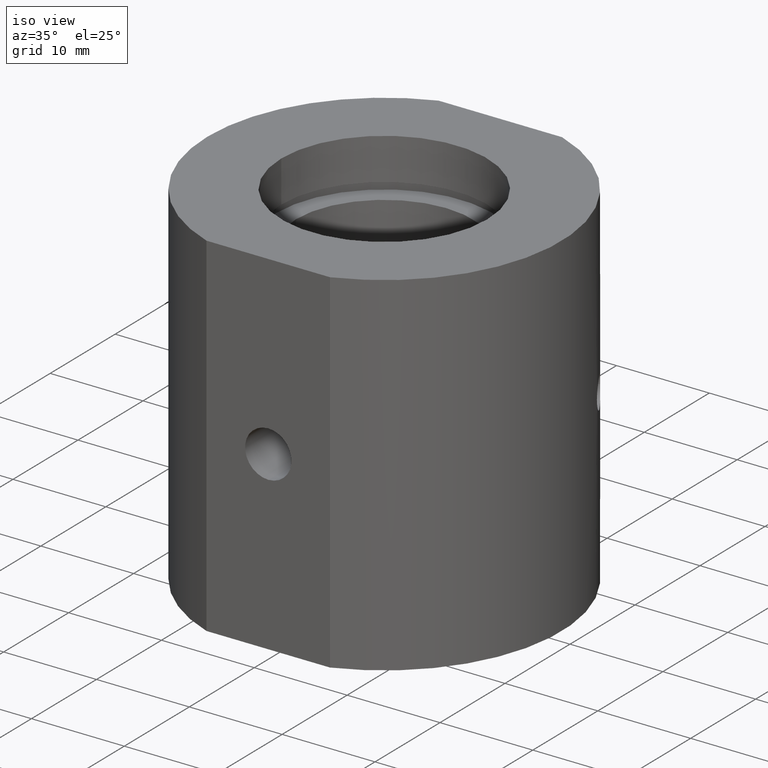
[diagram: clean part render]
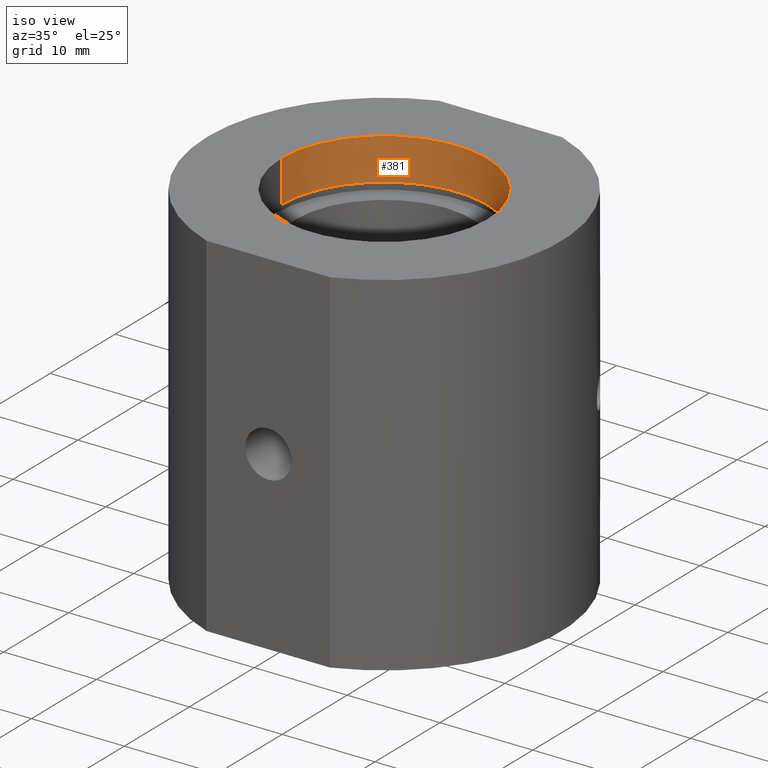
[diagram: same view with one face highlighted and labeled with its STEP entity id]
A machine part, iso view. The second image highlights one B-rep face of the part: STEP entity #381.
In plain terms, the highlighted cylindrical surface (partial cylindrical patch) has radius 11.1 mm, axis along (-0, -0, -1).
Its self-contained STEP definition (entity closure, byte-faithful):
#140 = DIRECTION ( 'NONE',  ( -1.000000000000000000, 0.0000000000000000000, 0.0000000000000000000 ) ) ;
#149 = CIRCLE ( 'NONE', #1093, 11.10000000000000000 ) ;
#178 = DIRECTION ( 'NONE',  ( -1.224646799147350500E-016, -0.0000000000000000000, -1.000000000000000000 ) ) ;
#265 = EDGE_CURVE ( 'NONE', #331, #1278, #758, .T. ) ;
#331 = VERTEX_POINT ( 'NONE', #1300 ) ;
#343 = FACE_OUTER_BOUND ( 'NONE', #869, .T. ) ;
#381 = ADVANCED_FACE ( 'NONE', ( #343 ), #889, .F. ) ;
#425 = EDGE_CURVE ( 'NONE', #1443, #331, #979, .T. ) ;
#470 = DIRECTION ( 'NONE',  ( -1.224646799147350500E-016, -0.0000000000000000000, -1.000000000000000000 ) ) ;
#532 = ORIENTED_EDGE ( 'NONE', *, *, #1425, .F. ) ;
#558 = ORIENTED_EDGE ( 'NONE', *, *, #1418, .F. ) ;
#589 = CARTESIAN_POINT ( 'NONE',  ( 6.238236670065281400E-015, 0.0000000000000000000, 18.99999999999999600 ) ) ;
#646 = CARTESIAN_POINT ( 'NONE',  ( -11.10000000000000100, 0.0000000000000000000, -31.93906810035839800 ) ) ;
#758 = CIRCLE ( 'NONE', #863, 11.10000000000000100 ) ;
#857 = DIRECTION ( 'NONE',  ( -1.000000000000000000, 0.0000000000000000000, 0.0000000000000000000 ) ) ;
#862 = DIRECTION ( 'NONE',  ( -1.000000000000000000, 0.0000000000000000000, 1.562813942321447500E-016 ) ) ;
#863 = AXIS2_PLACEMENT_3D ( 'NONE', #1172, #178, #862 ) ;
#869 = EDGE_LOOP ( 'NONE', ( #558, #532, #1384, #1070 ) ) ;
#889 = CYLINDRICAL_SURFACE ( 'NONE', #1380, 11.10000000000000100 ) ;
#944 = CARTESIAN_POINT ( 'NONE',  ( 11.10000000000000700, 1.359357947053562400E-015, 14.49999999999999600 ) ) ;
#970 = VECTOR ( 'NONE', #1028, 1000.000000000000000 ) ;
#975 = DIRECTION ( 'NONE',  ( -1.224646799147350500E-016, -0.0000000000000000000, -1.000000000000000000 ) ) ;
#979 = LINE ( 'NONE', #646, #1130 ) ;
#1028 = DIRECTION ( 'NONE',  ( -1.224646799147350500E-016, -0.0000000000000000000, -1.000000000000000000 ) ) ;
#1070 = ORIENTED_EDGE ( 'NONE', *, *, #265, .T. ) ;
#1076 = CARTESIAN_POINT ( 'NONE',  ( 0.0000000000000000000, 0.0000000000000000000, -31.93906810035839800 ) ) ;
#1093 = AXIS2_PLACEMENT_3D ( 'NONE', #589, #470, #140 ) ;
#1113 = CARTESIAN_POINT ( 'NONE',  ( 11.10000000000000100, 1.359357947053562400E-015, -31.93906810035839800 ) ) ;
#1130 = VECTOR ( 'NONE', #975, 1000.000000000000000 ) ;
#1141 = CARTESIAN_POINT ( 'NONE',  ( -11.09999999999999400, 0.0000000000000000000, 18.99999999999999600 ) ) ;
#1163 = LINE ( 'NONE', #1113, #970 ) ;
#1172 = CARTESIAN_POINT ( 'NONE',  ( 5.687145610448973200E-015, 0.0000000000000000000, 14.49999999999999800 ) ) ;
#1278 = VERTEX_POINT ( 'NONE', #944 ) ;
#1300 = CARTESIAN_POINT ( 'NONE',  ( -11.09999999999999800, 0.0000000000000000000, 14.50000000000000000 ) ) ;
#1338 = VERTEX_POINT ( 'NONE', #1349 ) ;
#1349 = CARTESIAN_POINT ( 'NONE',  ( 11.10000000000000700, 1.359357947053562400E-015, 18.99999999999999600 ) ) ;
#1380 = AXIS2_PLACEMENT_3D ( 'NONE', #1076, #1419, #857 ) ;
#1384 = ORIENTED_EDGE ( 'NONE', *, *, #425, .T. ) ;
#1418 = EDGE_CURVE ( 'NONE', #1338, #1278, #1163, .T. ) ;
#1419 = DIRECTION ( 'NONE',  ( -1.224646799147350500E-016, -0.0000000000000000000, -1.000000000000000000 ) ) ;
#1425 = EDGE_CURVE ( 'NONE', #1443, #1338, #149, .T. ) ;
#1443 = VERTEX_POINT ( 'NONE', #1141 ) ;